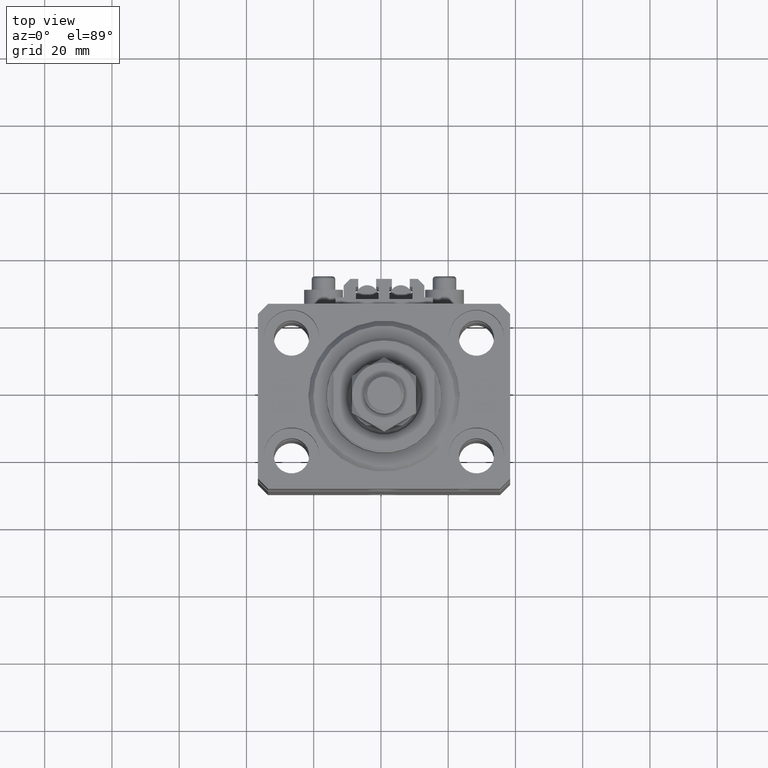
[diagram: clean part render]
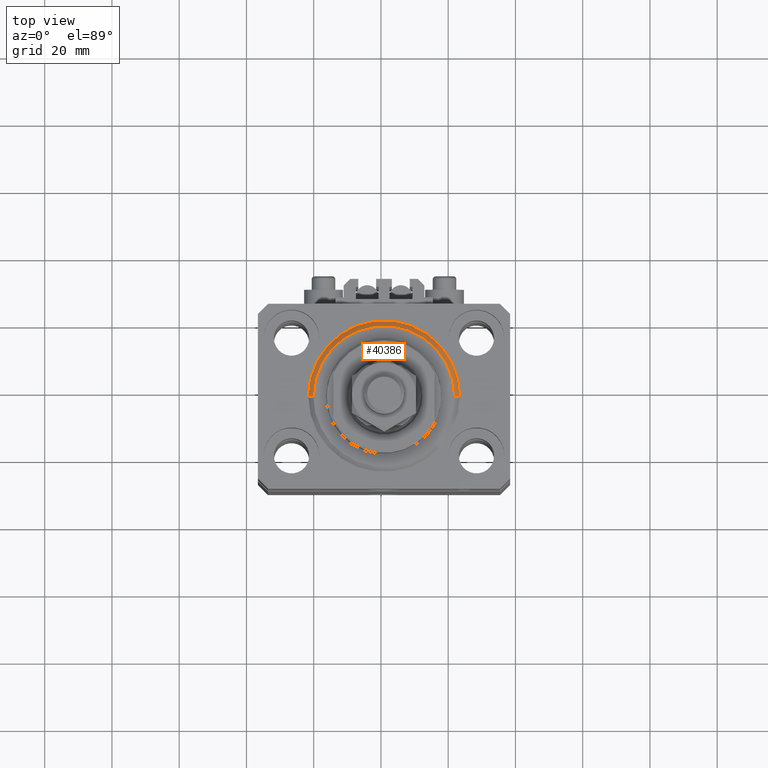
[diagram: same view with one face highlighted and labeled with its STEP entity id]
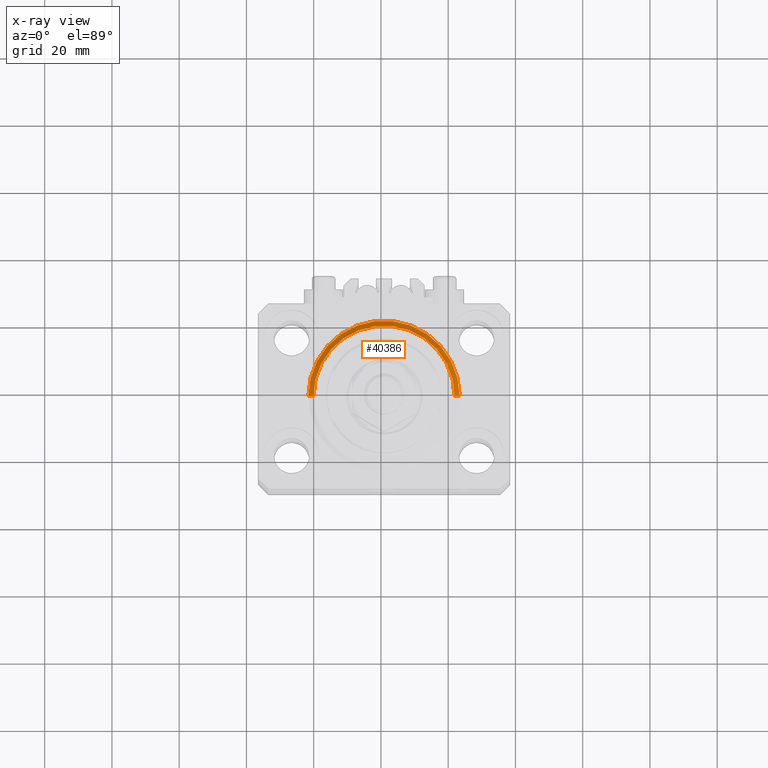
[diagram: x-ray of the same camera — body ghosted, the highlighted face saturated]
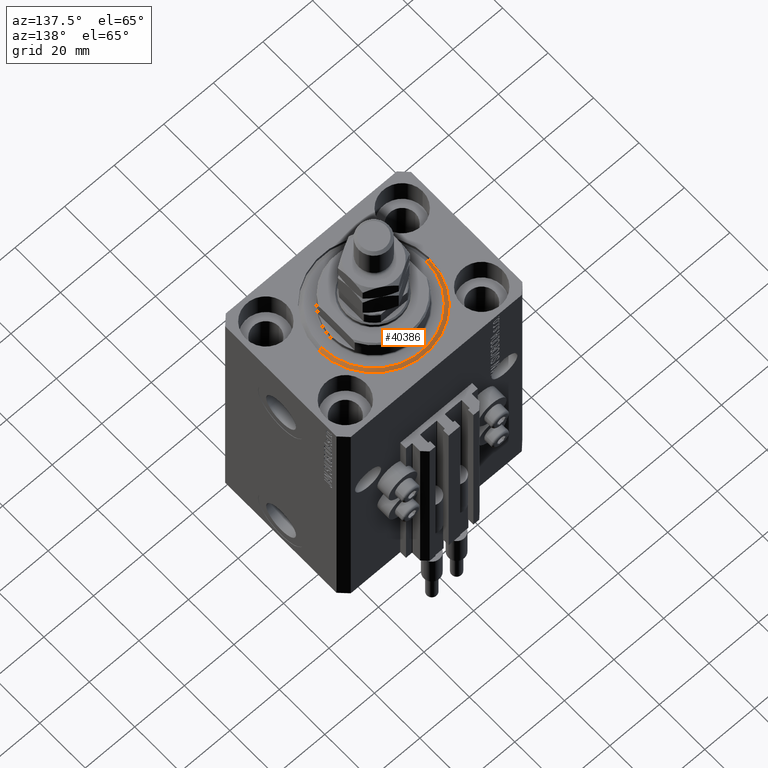
[diagram: same view with one face highlighted and labeled with its STEP entity id]
A machine part, top view. The second image highlights one B-rep face of the part: STEP entity #40386.
The next image is the same camera in x-ray: the body ghosted, the highlighted face saturated — about 0% of this face is hidden behind the body in this view.
A second angle (auxiliary view) of the same face is appended — the face is thin or edge-on in the first view.
In plain terms, the highlighted conical surface has half-angle 45 deg.
Its self-contained STEP definition (entity closure, byte-faithful):
#68 = CIRCLE ( 'NONE', #16815, 22.50000000000000355 ) ;
#186 = ORIENTED_EDGE ( 'NONE', *, *, #6704, .F. ) ;
#725 = DIRECTION ( 'NONE',  ( -0.000000000000000000, -0.000000000000000000, 1.000000000000000000 ) ) ;
#1936 = CARTESIAN_POINT ( 'NONE',  ( 22.50000000000000355, 2.755455298081544383E-15, 1.500000000000039524 ) ) ;
#2650 = VERTEX_POINT ( 'NONE', #40744 ) ;
#3656 = DIRECTION ( 'NONE',  ( -0.7071067811865500152, 8.659560562354962440E-17, 0.7071067811865451302 ) ) ;
#3693 = ORIENTED_EDGE ( 'NONE', *, *, #44159, .F. ) ;
#6704 = EDGE_CURVE ( 'NONE', #38761, #2650, #42079, .T. ) ;
#7247 = DIRECTION ( 'NONE',  ( 1.000000000000000000, 0.000000000000000000, 0.000000000000000000 ) ) ;
#9289 = EDGE_CURVE ( 'NONE', #2650, #39268, #38978, .T. ) ;
#10159 = CARTESIAN_POINT ( 'NONE',  ( -22.50000000000000355, 0.000000000000000000, 1.500000000000039524 ) ) ;
#14784 = DIRECTION ( 'NONE',  ( -0.000000000000000000, -0.000000000000000000, -1.000000000000000000 ) ) ;
#15091 = CARTESIAN_POINT ( 'NONE',  ( 22.50000000000000355, 0.000000000000000000, 1.500000000000039524 ) ) ;
#16815 = AXIS2_PLACEMENT_3D ( 'NONE', #43013, #725, #19355 ) ;
#17483 = DIRECTION ( 'NONE',  ( -0.000000000000000000, -0.000000000000000000, 1.000000000000000000 ) ) ;
#17927 = VERTEX_POINT ( 'NONE', #10159 ) ;
#19355 = DIRECTION ( 'NONE',  ( 1.000000000000000000, 0.000000000000000000, 0.000000000000000000 ) ) ;
#21150 = AXIS2_PLACEMENT_3D ( 'NONE', #48994, #14784, #7247 ) ;
#21397 = EDGE_LOOP ( 'NONE', ( #186, #42704, #3693, #43584 ) ) ;
#23351 = DIRECTION ( 'NONE',  ( 0.7071067811865500152, 0.000000000000000000, 0.7071067811865451302 ) ) ;
#27248 = CONICAL_SURFACE ( 'NONE', #39307, 22.50000000000000355, 0.7853981633974517207 ) ;
#27302 = CARTESIAN_POINT ( 'NONE',  ( -22.50000000000000355, 2.755455298081545172E-15, 1.500000000000039524 ) ) ;
#31084 = LINE ( 'NONE', #27302, #48732 ) ;
#31192 = EDGE_CURVE ( 'NONE', #38761, #17927, #31084, .T. ) ;
#37403 = DIRECTION ( 'NONE',  ( 1.000000000000000000, 0.000000000000000000, 0.000000000000000000 ) ) ;
#38761 = VERTEX_POINT ( 'NONE', #40903 ) ;
#38978 = LINE ( 'NONE', #15091, #39756 ) ;
#39268 = VERTEX_POINT ( 'NONE', #1936 ) ;
#39307 = AXIS2_PLACEMENT_3D ( 'NONE', #48683, #17483, #37403 ) ;
#39756 = VECTOR ( 'NONE', #23351, 1000.000000000000114 ) ;
#40386 = ADVANCED_FACE ( 'NONE', ( #41171 ), #27248, .T. ) ;
#40744 = CARTESIAN_POINT ( 'NONE',  ( 20.99999999999995381, 0.000000000000000000, 0.000000000000000000 ) ) ;
#40903 = CARTESIAN_POINT ( 'NONE',  ( -20.99999999999995381, 2.663606788145490261E-15, 0.000000000000000000 ) ) ;
#41171 = FACE_OUTER_BOUND ( 'NONE', #21397, .T. ) ;
#42079 = CIRCLE ( 'NONE', #21150, 20.99999999999995381 ) ;
#42704 = ORIENTED_EDGE ( 'NONE', *, *, #31192, .T. ) ;
#43013 = CARTESIAN_POINT ( 'NONE',  ( 0.000000000000000000, 0.000000000000000000, 1.500000000000039524 ) ) ;
#43584 = ORIENTED_EDGE ( 'NONE', *, *, #9289, .F. ) ;
#44159 = EDGE_CURVE ( 'NONE', #39268, #17927, #68, .T. ) ;
#48683 = CARTESIAN_POINT ( 'NONE',  ( 0.000000000000000000, 0.000000000000000000, 1.500000000000039524 ) ) ;
#48732 = VECTOR ( 'NONE', #3656, 1000.000000000000114 ) ;
#48994 = CARTESIAN_POINT ( 'NONE',  ( 0.000000000000000000, 0.000000000000000000, 0.000000000000000000 ) ) ;